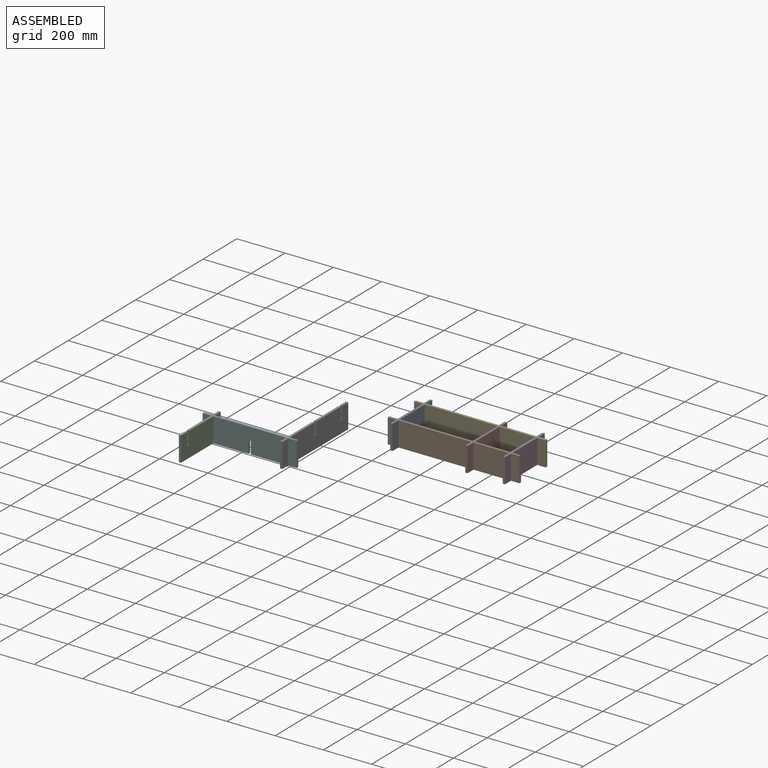
[diagram: assembled view]
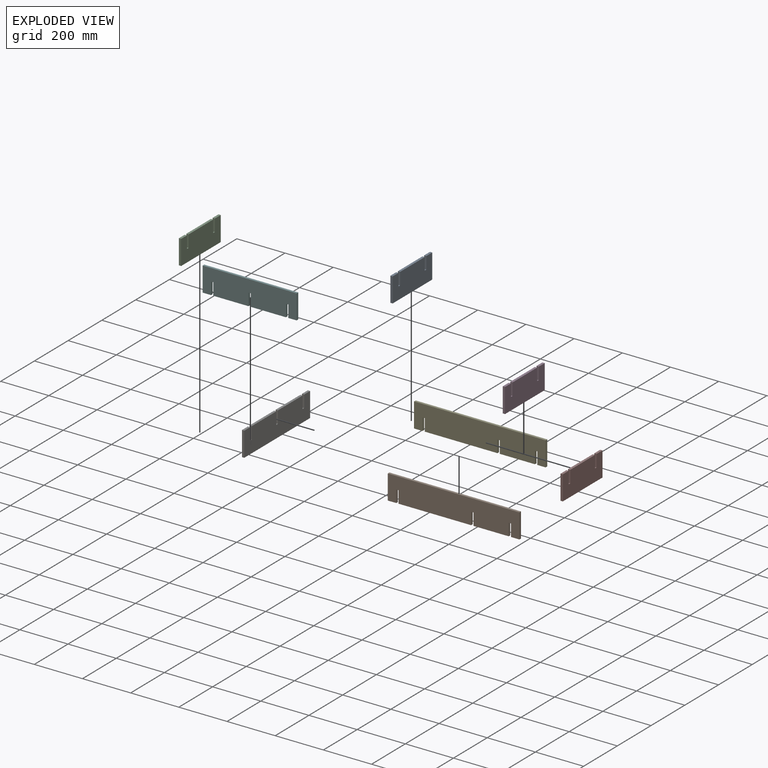
[diagram: exploded view]
GUIDED TOUR — MATED ASSEMBLY (Onshape document ac5bb5d6a02031c84b888dd6, AutoMate assembly ac5bb5d6a02031c84b888dd6_64522fc7bb99e7116ee90f91_e46ffc881eaa41fa5e1d272c_default)

This assembly has 8 components, labeled P0..P7 below (a component is one placed occurrence of a part; the same part can appear more than once), held together by 6 mates. A mate is a constraint between two components; its type names the relative motion it leaves free:
  FASTENED — locks the two components together rigidly (no relative motion).
Axis/direction vectors are unit vectors and 'through' points are millimeter coordinates, both in the assembly's world frame.

MATES
  1. FASTENED "Fastened 4": P7 <-> P4, direction (-1.000, 0.000, 0.000) through (199.04, -105.18, -212.98) mm
  2. FASTENED "Fastened 2": P0 <-> P1, direction (1.000, 0.000, 0.000) through (-102.59, -260.75, -212.98) mm
  3. FASTENED "Fastened 5": P2 <-> P5, direction (1.000, 0.000, 0.000) through (-703.75, -500.25, -266.68) mm
  4. FASTENED "Fastened 3": P4 <-> P0, direction (0.000, -1.000, 0.000) through (-107.35, -109.94, -212.98) mm
  5. FASTENED "Fastened 1": P4 <-> P3, direction (0.000, 1.000, 0.000) through (359.38, -100.41, -212.98) mm
  6. FASTENED "Fastened 6": P6 <-> P5, direction (1.000, 0.000, 0.000) through (-392.60, -500.25, -266.68) mm

ASSEMBLY ORDER
  1. P4 — the base component [order verified]
  2. P3 [order verified]
  3. P1 [order verified]
  4. P6 [order verified]
  5. P5 [order verified]
  6. P2 [order verified]
  7. P7 [order verified]
  8. P0 [order verified]
Order-tag legend:
  [order verified] — this step's position reverses a verified removal order: the component was checked to insert without passing through the ones already placed.

Of the 8 components, 8 carry the full construction recipe — the FeatureScript program that regenerates the part's solid from scratch; the rest are supplied as boundary geometry only.
Each toured component is shown spotlighted twice — in the assembled view, then in the exploded view, where a leader line traces a displaced component back to its assembled socket (saturated green if recipe-attached, orange if geometry-only; every other component desaturated gray) — followed by its recipe or geometry summary and the mates that hold it.
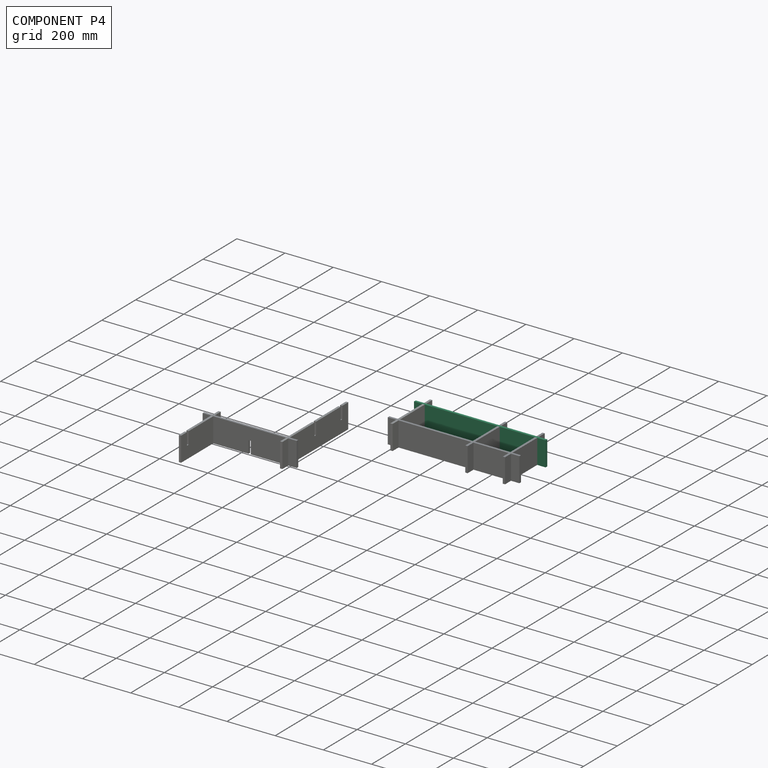
[diagram: component P4 — assembled]
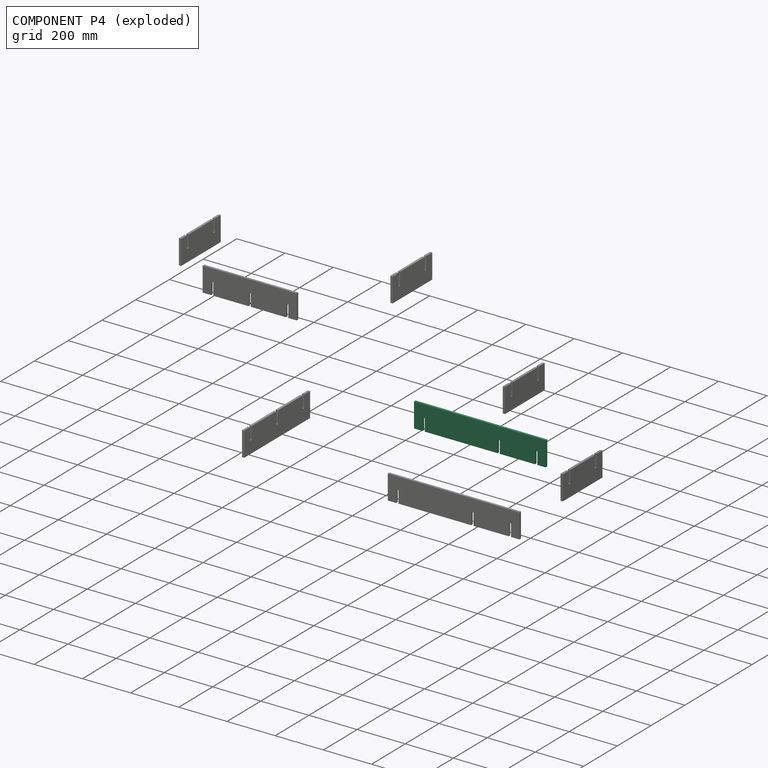
[diagram: component P4 — exploded]
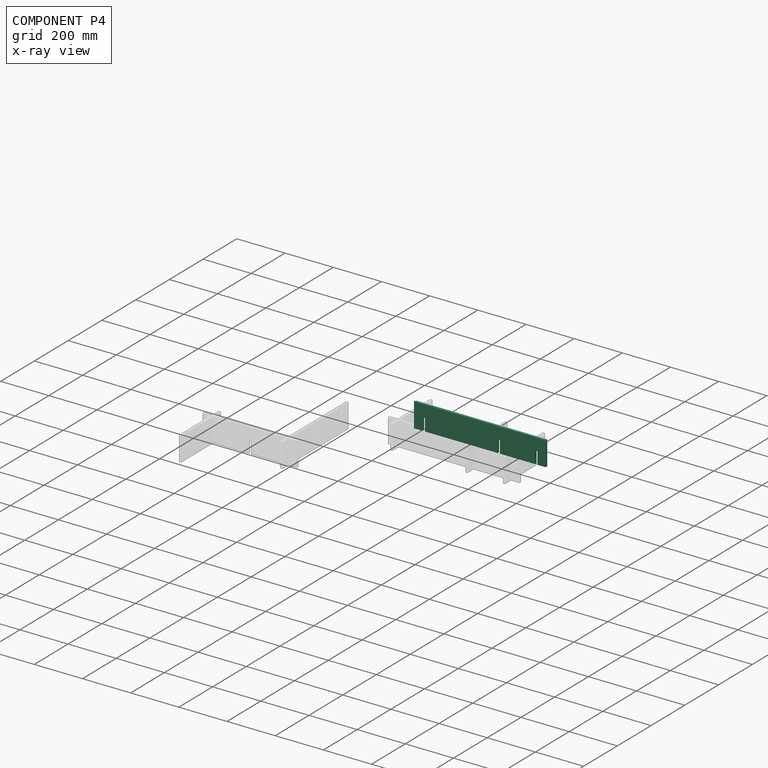
[diagram: component P4 — x-ray view]
COMPONENT P4 — same part as P1 (CADFS 00288358); its construction recipe is shown at P1.
Held by: FASTENED mate "Fastened 4" to P7; FASTENED mate "Fastened 3" to P0; FASTENED mate "Fastened 1" to P3.
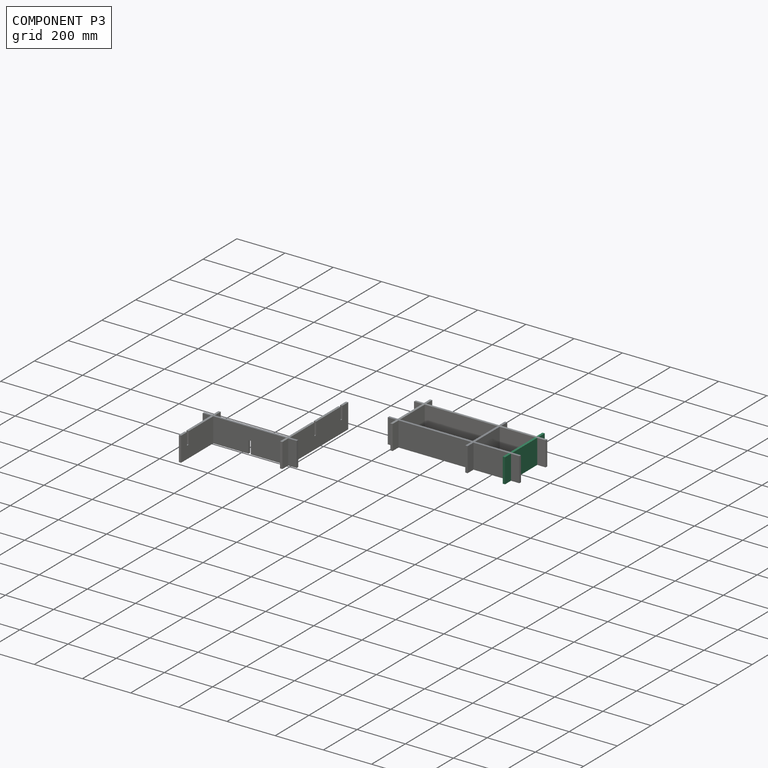
[diagram: component P3 — assembled]
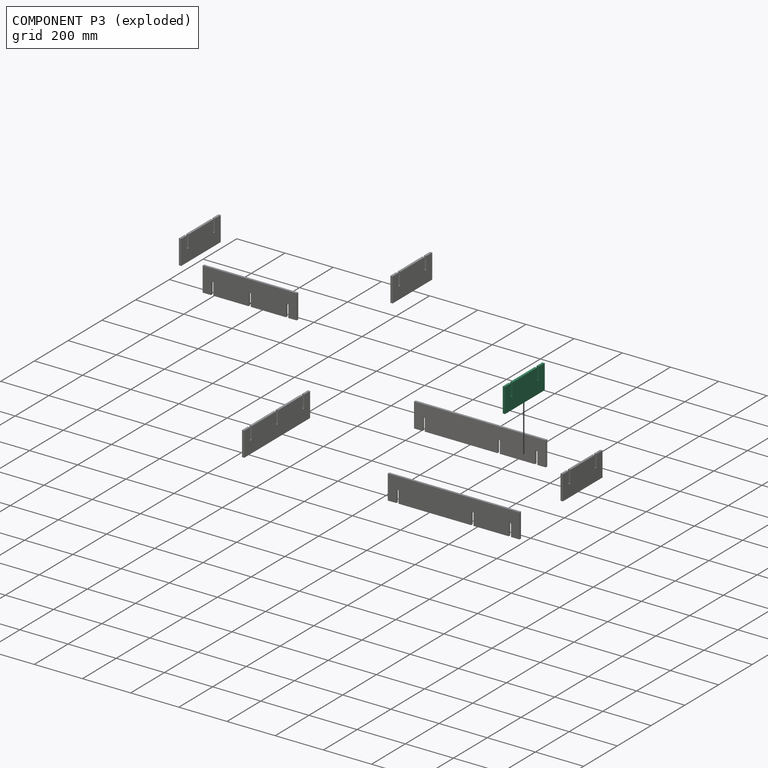
[diagram: component P3 — exploded]
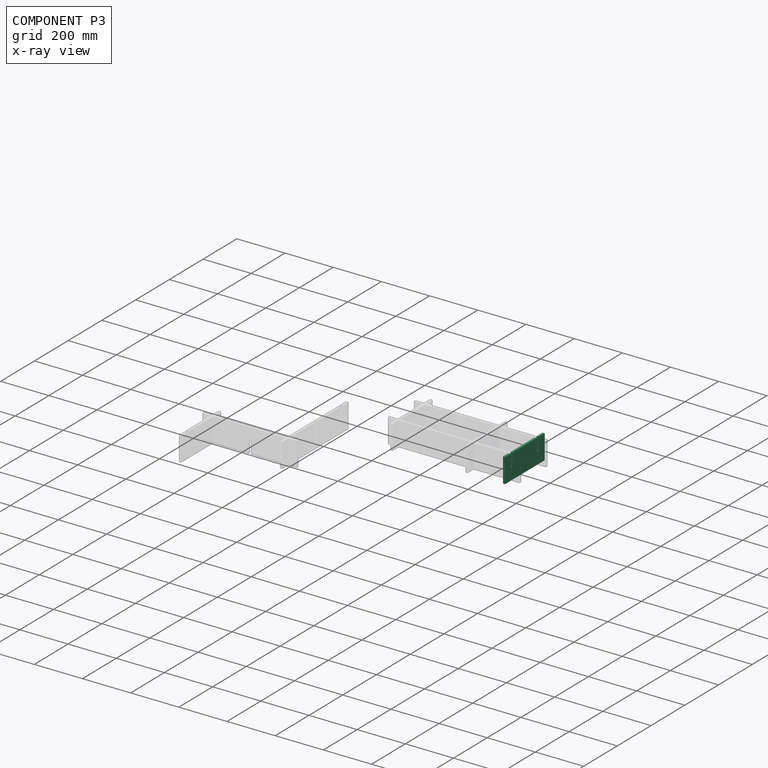
[diagram: component P3 — x-ray view]
COMPONENT P3 — same part as P0 (CADFS 00288355); its construction recipe is shown at P0.
Held by: FASTENED mate "Fastened 1" to P4.
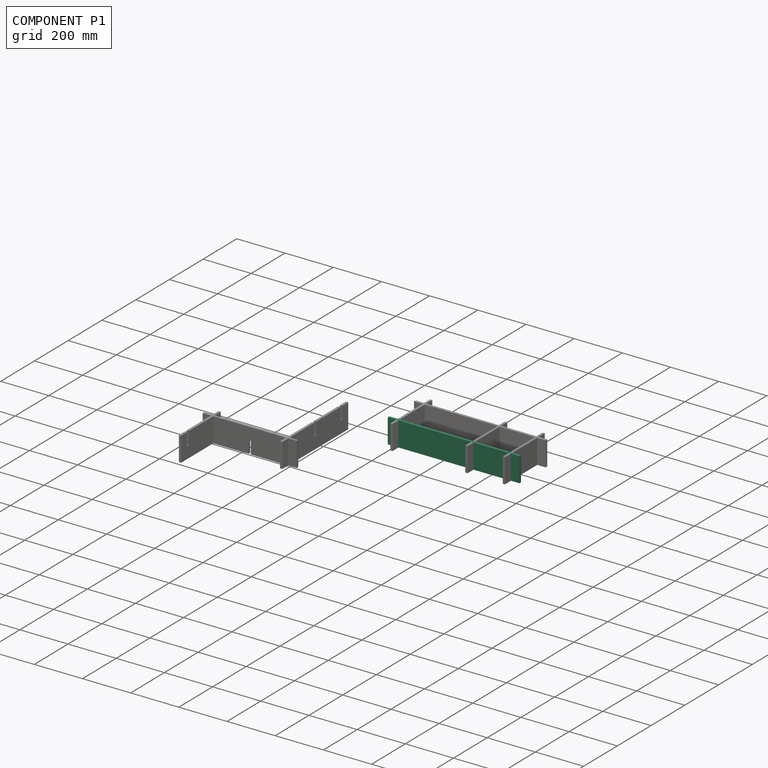
[diagram: component P1 — assembled]
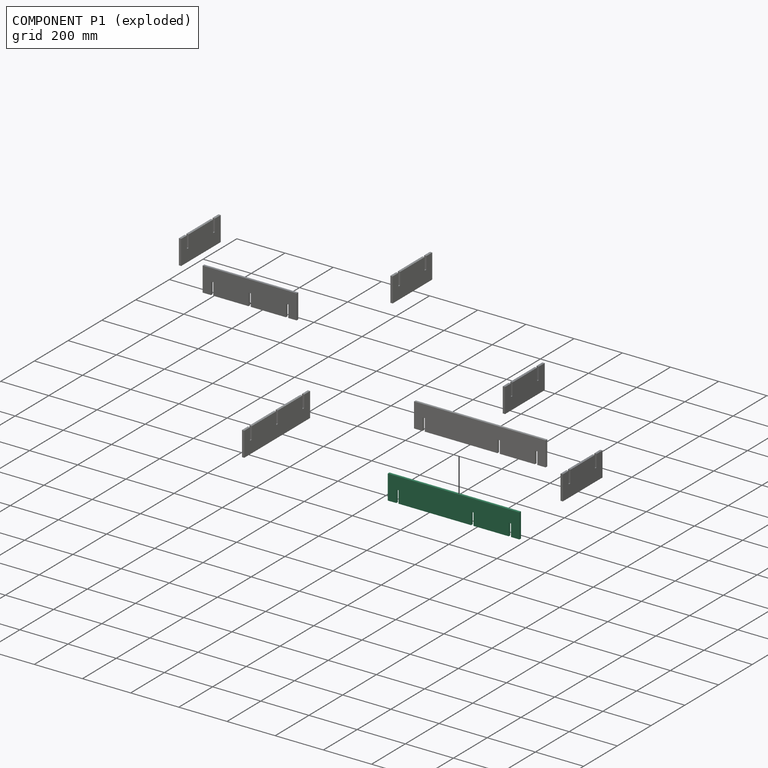
[diagram: component P1 — exploded]
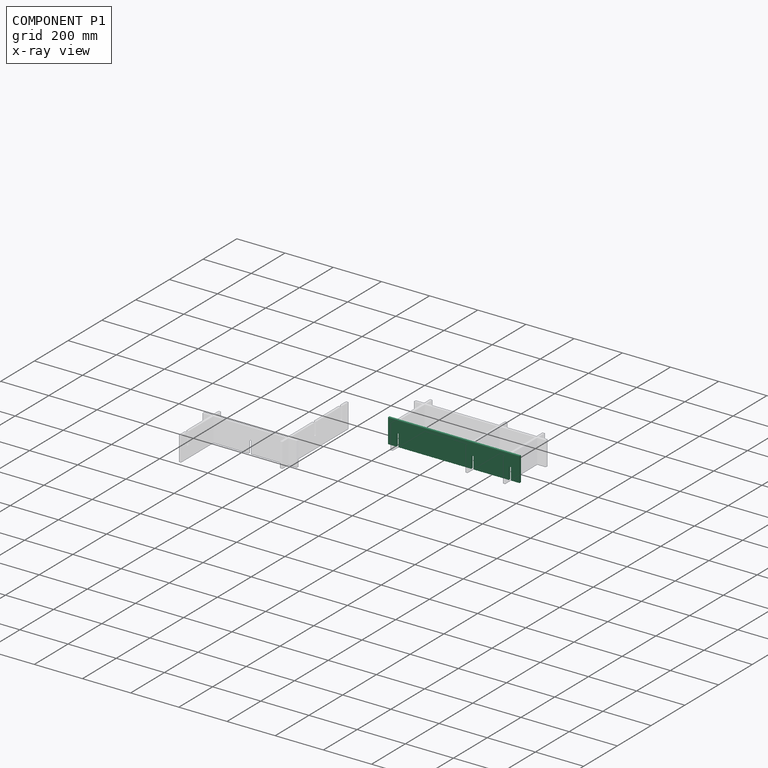
[diagram: component P1 — x-ray view]
COMPONENT P1 — recipe-attached (CADFS 00288358, mesh-verified: the recipe's output STEP matches this component's geometry to below the mesh-comparison resolution (tessellation chordal tolerance ~0.833 mm)).
Held by: FASTENED mate "Fastened 2" to P0.
Construction recipe (FeatureScript — the CAD program that rebuilds this solid; sketch coordinates are in the units given by the * unit suffixes, e.g. mm):

FeatureScript 1511;
import(path : "onshape/std/geometry.fs", version : "1511.0");
import(path : "onshape/std/common.fs", version : "1511.0");
const mm = millimeter;
const VERTEX = EntityType.VERTEX;
const EDGE = EntityType.EDGE;
const FACE = EntityType.FACE;
const BODY = EntityType.BODY;
function v(x, y){return vector(x, y);}
function OD(order){return orderDisambiguation(order);}
function OSD(set){return originalSetDisambiguation(set);}
function TD(topology){return topologyDisambiguation(topology);}
function TDD(query){return trueDependencyDisambiguation(query);}
function sQuery(a, b, c) {return sketchEntityQuery(a, b, c);}

annotation { "Feature Type Name" : "Feature", "Feature Type Description" : "" }
export const myFeature = defineFeature(function(context is Context, id is Id, definition is map)
    precondition{}
    {
        {
            var Q0;
            Q0=qCreatedBy(makeId("Front.planeOp"),FACE);
            var sketch = newSketch(context, id + "F0", { "sketchPlane" : qUnion([Q0])});
            skLineSegment(sketch, "E0.bottom", {"start": v(-273.05, 50.8) * mm, "end": v(273.05, 50.8) * mm});
            skLineSegment(sketch, "E0.top", {"start": v(-273.05, -50.8) * mm, "end": v(-238.12, -50.8) * mm});
            skLineSegment(sketch, "E0.left", {"start": v(-273.05, 50.8) * mm, "end": v(-273.05, -50.8) * mm});
            skLineSegment(sketch, "E0.right", {"start": v(273.05, 50.8) * mm, "end": v(273.05, -50.8) * mm});
            skPoint(sketch, "E0.middle", {"position": v(0, 0) * mm});
            skLineSegment(sketch, "E1.top", {"start": v(-238.12, 0) * mm, "end": v(-228.6, 0) * mm});
            skLineSegment(sketch, "E1.left", {"start": v(-238.12, -50.8) * mm, "end": v(-238.12, 0) * mm});
            skLineSegment(sketch, "E1.right", {"start": v(-228.6, -50.8) * mm, "end": v(-228.6, 0) * mm});
            skLineSegment(sketch, "E2.trimOffspring", {"start": v(-228.6, -50.8) * mm, "end": v(73.02, -50.8) * mm});
            skLineSegment(sketch, "E3.top", {"start": v(228.6, 0) * mm, "end": v(238.12, 0) * mm});
            skLineSegment(sketch, "E3.left", {"start": v(228.6, -50.8) * mm, "end": v(228.6, 0) * mm});
            skLineSegment(sketch, "E3.right", {"start": v(238.12, -50.8) * mm, "end": v(238.12, 0) * mm});
            skLineSegment(sketch, "E4.trimOffspring", {"start": v(238.12, -50.8) * mm, "end": v(273.05, -50.8) * mm});
            skLineSegment(sketch, "E5.top", {"start": v(73.02, 0) * mm, "end": v(82.55, 0) * mm});
            skLineSegment(sketch, "E5.left", {"start": v(73.02, -50.8) * mm, "end": v(73.02, 0) * mm});
            skLineSegment(sketch, "E5.right", {"start": v(82.55, -50.8) * mm, "end": v(82.55, 0) * mm});
            skLineSegment(sketch, "E6.trimOffspring", {"start": v(82.55, -50.8) * mm, "end": v(228.6, -50.8) * mm});
            skSolve(sketch);
        }
        {
            var Q0;
            Q0 = qSketchRegion(id + "F0", true);
            extrude(context, id + "F1", {"entities" : qUnion([Q0]), "depth" : 9.52 * mm});
        }
    });
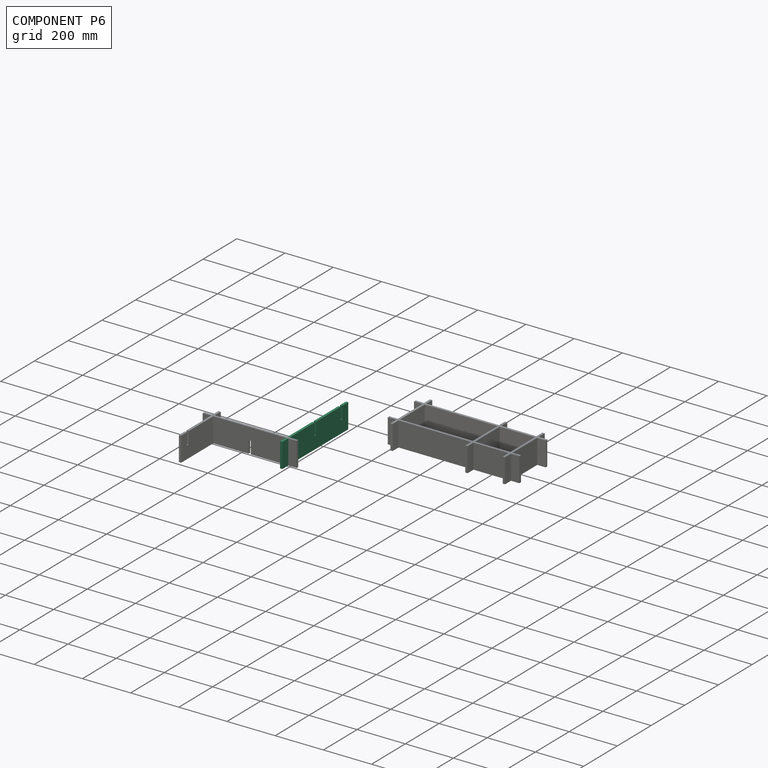
[diagram: component P6 — assembled]
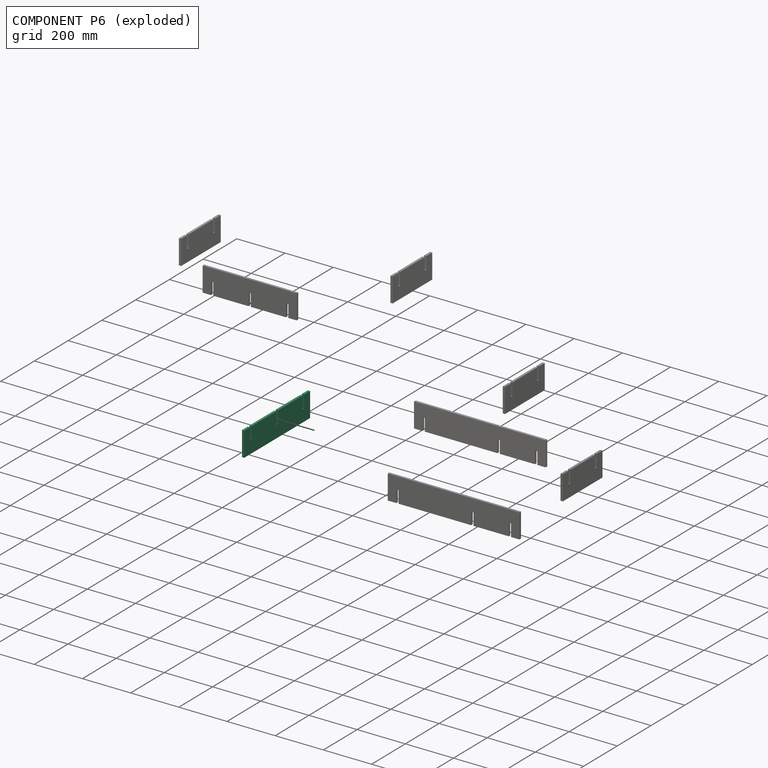
[diagram: component P6 — exploded]
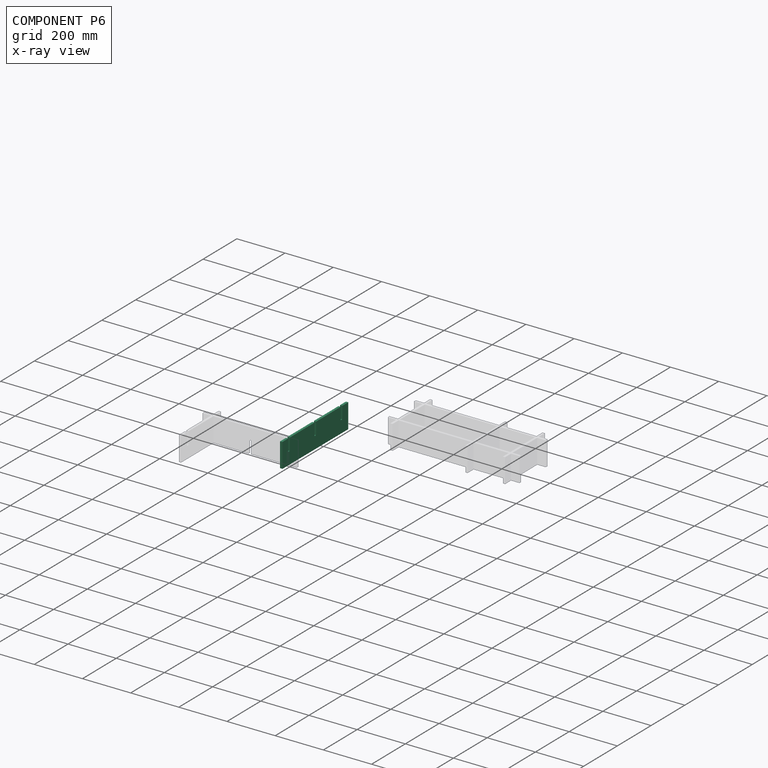
[diagram: component P6 — x-ray view]
COMPONENT P6 — same part as P5 (CADFS 00288356); its construction recipe is shown at P5.
Held by: FASTENED mate "Fastened 6" to P5.
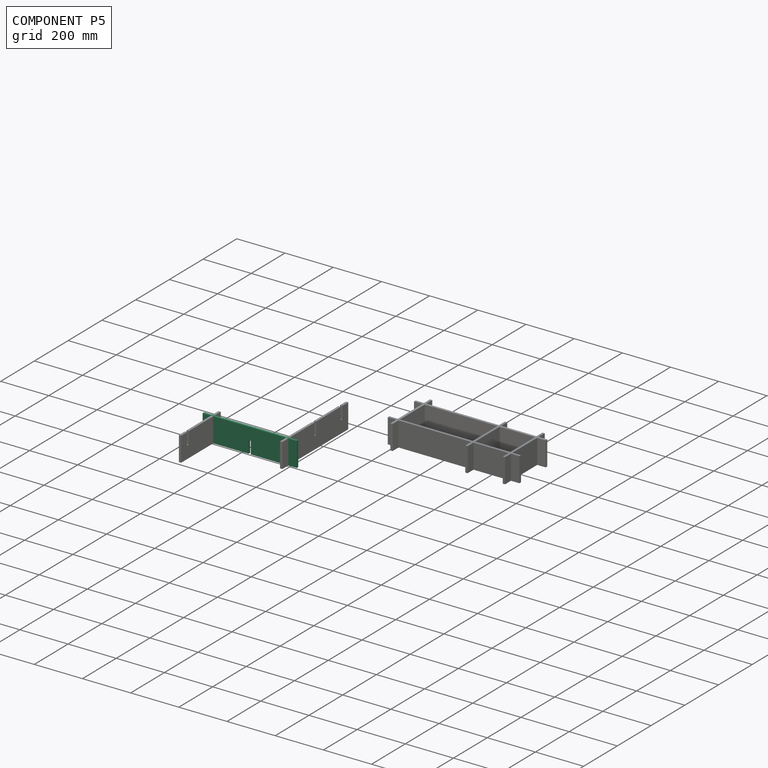
[diagram: component P5 — assembled]
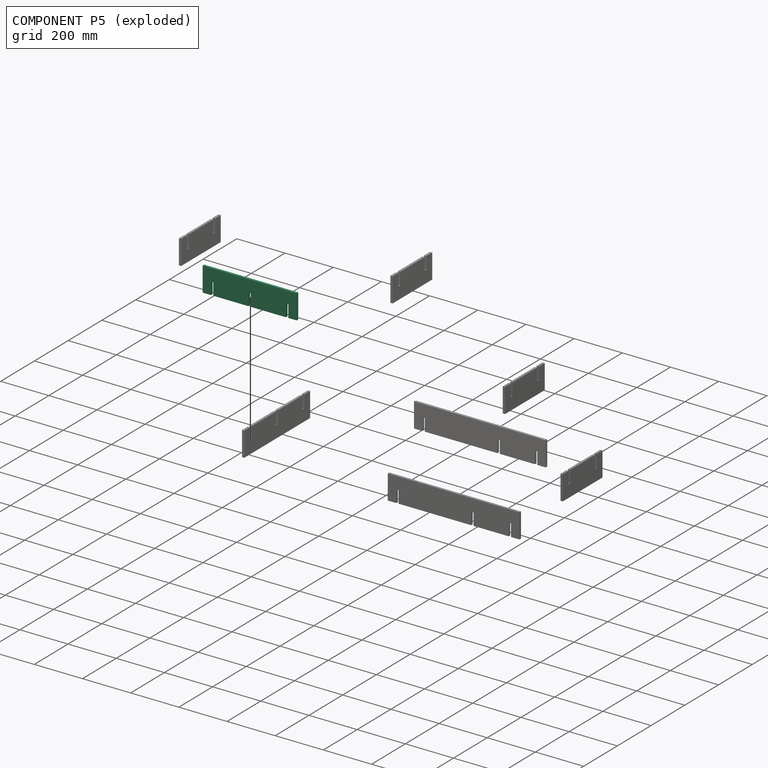
[diagram: component P5 — exploded]
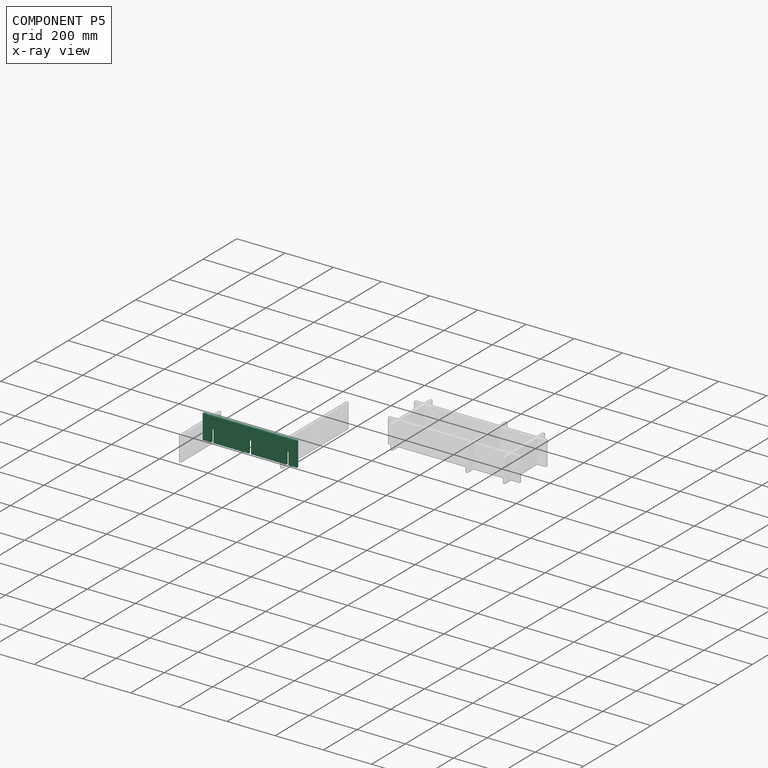
[diagram: component P5 — x-ray view]
COMPONENT P5 — recipe-attached (CADFS 00288356, mesh-verified: the recipe's output STEP matches this component's geometry to below the mesh-comparison resolution (tessellation chordal tolerance ~0.605 mm)).
Held by: FASTENED mate "Fastened 5" to P2; FASTENED mate "Fastened 6" to P6.
Construction recipe (FeatureScript — the CAD program that rebuilds this solid; sketch coordinates are in the units given by the * unit suffixes, e.g. mm):

FeatureScript 1511;
import(path : "onshape/std/geometry.fs", version : "1511.0");
import(path : "onshape/std/common.fs", version : "1511.0");
const mm = millimeter;
const VERTEX = EntityType.VERTEX;
const EDGE = EntityType.EDGE;
const FACE = EntityType.FACE;
const BODY = EntityType.BODY;
function v(x, y){return vector(x, y);}
function OD(order){return orderDisambiguation(order);}
function OSD(set){return originalSetDisambiguation(set);}
function TD(topology){return topologyDisambiguation(topology);}
function TDD(query){return trueDependencyDisambiguation(query);}
function sQuery(a, b, c) {return sketchEntityQuery(a, b, c);}

annotation { "Feature Type Name" : "Feature", "Feature Type Description" : "" }
export const myFeature = defineFeature(function(context is Context, id is Id, definition is map)
    precondition{}
    {
        {
            var Q0;
            Q0=qCreatedBy(makeId("Front.planeOp"),FACE);
            var sketch = newSketch(context, id + "F0", { "sketchPlane" : qUnion([Q0])});
            skLineSegment(sketch, "E0.bottom", {"start": v(-195.26, -50.8) * mm, "end": v(-160.34, -50.8) * mm});
            skLineSegment(sketch, "E0.top", {"start": v(-195.26, 50.8) * mm, "end": v(195.26, 50.8) * mm});
            skLineSegment(sketch, "E0.left", {"start": v(-195.26, -50.8) * mm, "end": v(-195.26, 50.8) * mm});
            skLineSegment(sketch, "E0.right", {"start": v(195.26, -50.8) * mm, "end": v(195.26, 50.8) * mm});
            skPoint(sketch, "E0.middle", {"position": v(0, 0) * mm});
            skLineSegment(sketch, "E1.top", {"start": v(-160.34, 0) * mm, "end": v(-150.81, 0) * mm});
            skLineSegment(sketch, "E1.left", {"start": v(-160.34, -50.8) * mm, "end": v(-160.34, 0) * mm});
            skLineSegment(sketch, "E1.right", {"start": v(-150.81, -50.8) * mm, "end": v(-150.81, 0) * mm});
            skLineSegment(sketch, "E2.top", {"start": v(160.34, 0) * mm, "end": v(150.81, 0) * mm});
            skLineSegment(sketch, "E2.left", {"start": v(160.34, -50.8) * mm, "end": v(160.34, 0) * mm});
            skLineSegment(sketch, "E2.right", {"start": v(150.81, -50.8) * mm, "end": v(150.81, 0) * mm});
            skPoint(sketch, "E3.oppositeSnap0", {"position": v(160.34, -25.4) * mm});
            skLineSegment(sketch, "E3.left", {"start": v(160.34, -25.4) * mm, "end": v(160.34, -25.4) * mm});
            skLineSegment(sketch, "E3.right", {"start": v(195.26, -25.4) * mm, "end": v(195.26, -25.4) * mm});
            skLineSegment(sketch, "E4.trimOffspring", {"start": v(-150.81, -50.8) * mm, "end": v(-4.76, -50.8) * mm});
            skLineSegment(sketch, "E5.trimOffspring", {"start": v(160.34, -50.8) * mm, "end": v(195.26, -50.8) * mm});
            skLineSegment(sketch, "E6.top", {"start": v(-6.92, 0) * mm, "end": v(2.6, 0) * mm});
            skLineSegment(sketch, "E7.top", {"start": v(-4.76, 0) * mm, "end": v(4.76, 0) * mm});
            skLineSegment(sketch, "E7.left", {"start": v(-4.76, -50.8) * mm, "end": v(-4.76, 0) * mm});
            skLineSegment(sketch, "E7.right", {"start": v(4.76, -50.8) * mm, "end": v(4.76, 0) * mm});
            skLineSegment(sketch, "E8.trimOffspring", {"start": v(4.76, -50.8) * mm, "end": v(150.81, -50.8) * mm});
            skSolve(sketch);
        }
        {
            var Q0;
            Q0 = qSketchRegion(id + "F0", true);
            extrude(context, id + "F1", {"entities" : qUnion([Q0]), "depth" : 9.52 * mm});
        }
    });
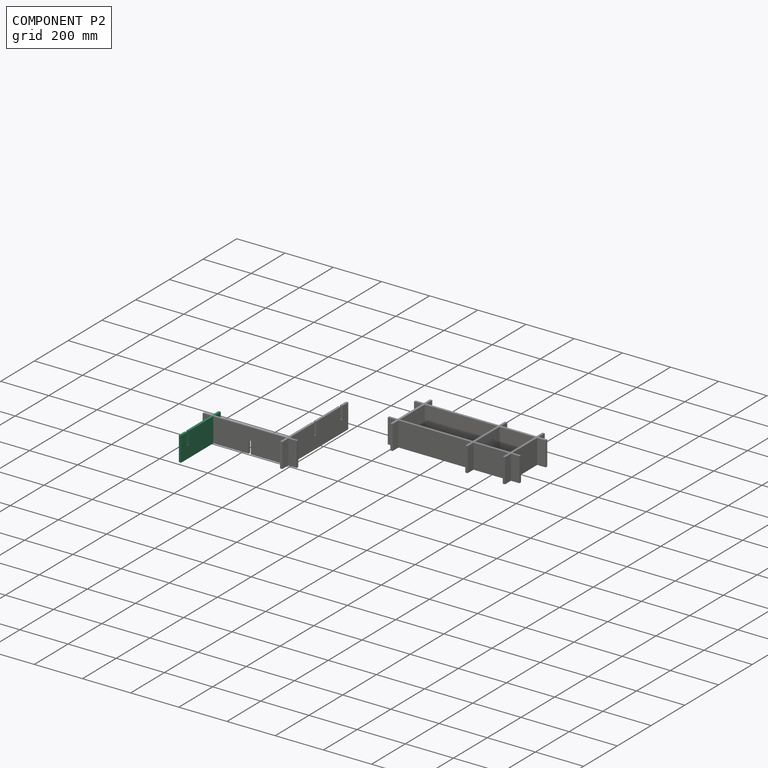
[diagram: component P2 — assembled]
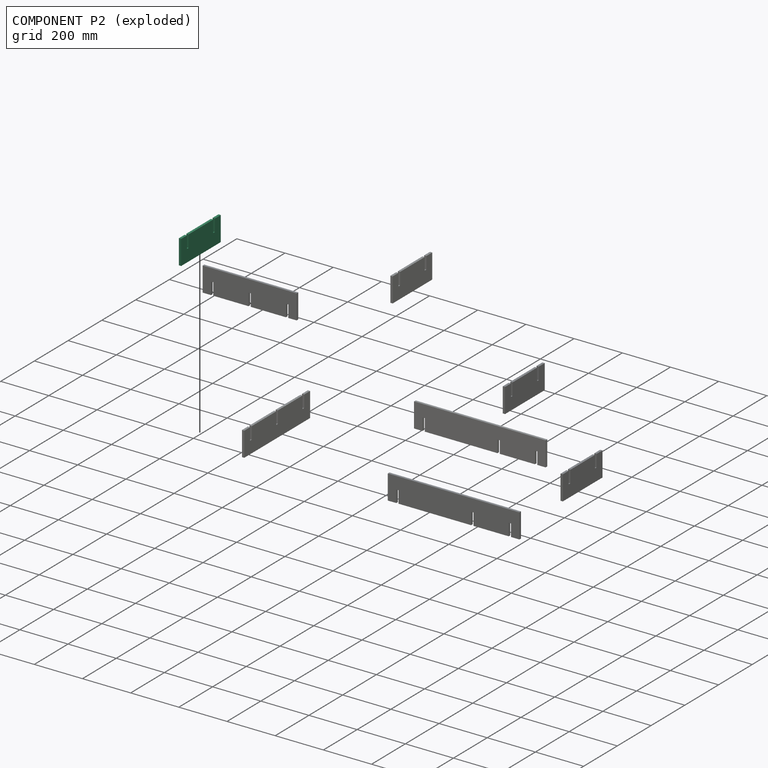
[diagram: component P2 — exploded]
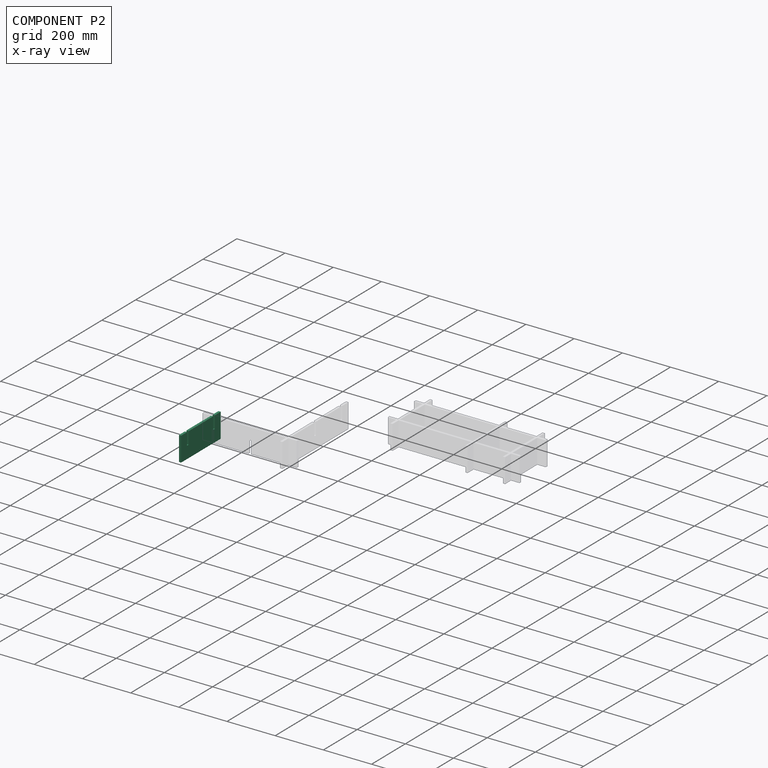
[diagram: component P2 — x-ray view]
COMPONENT P2 — same part as P0 (CADFS 00288355); its construction recipe is shown at P0.
Held by: FASTENED mate "Fastened 5" to P5.
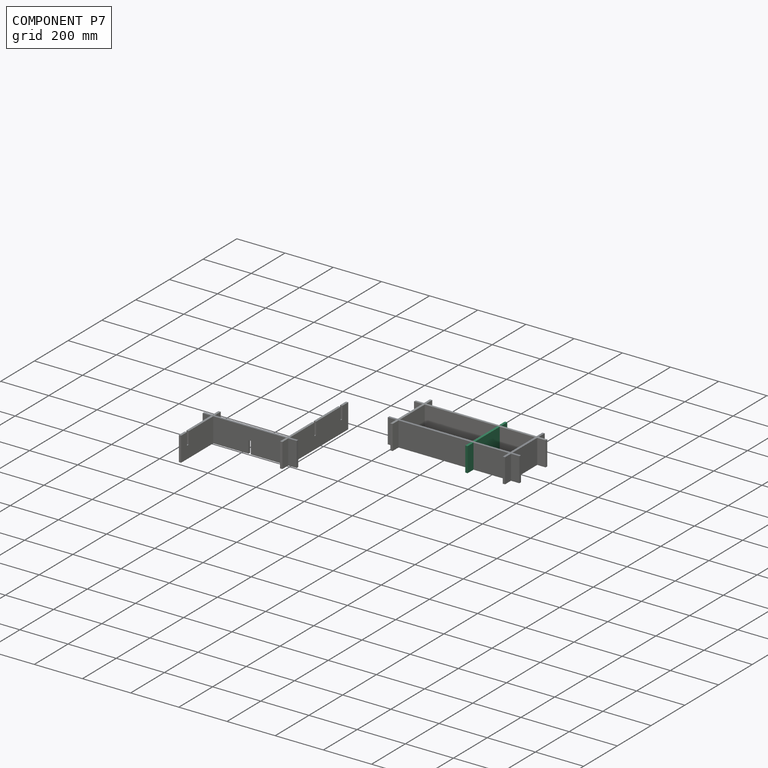
[diagram: component P7 — assembled]
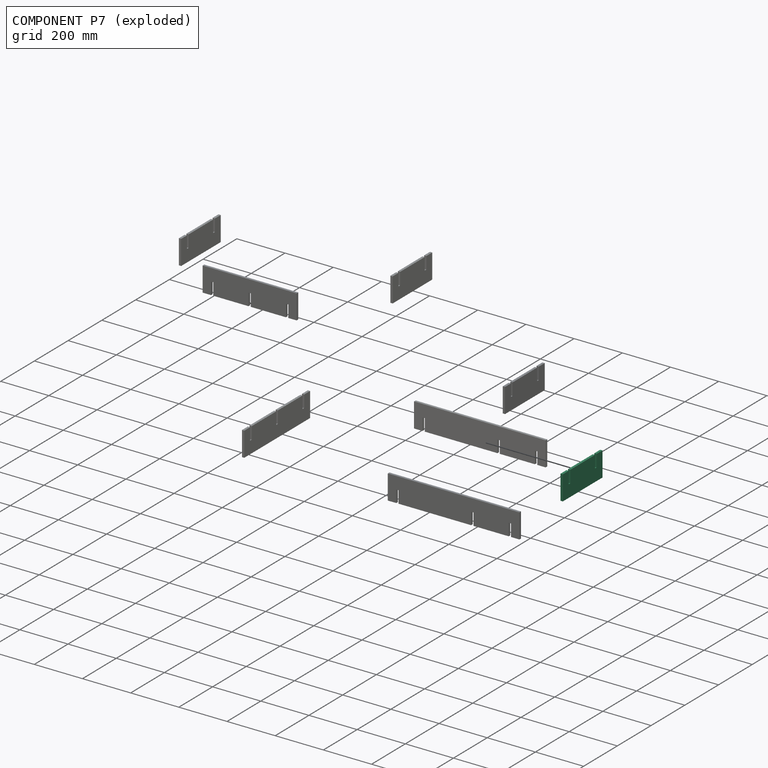
[diagram: component P7 — exploded]
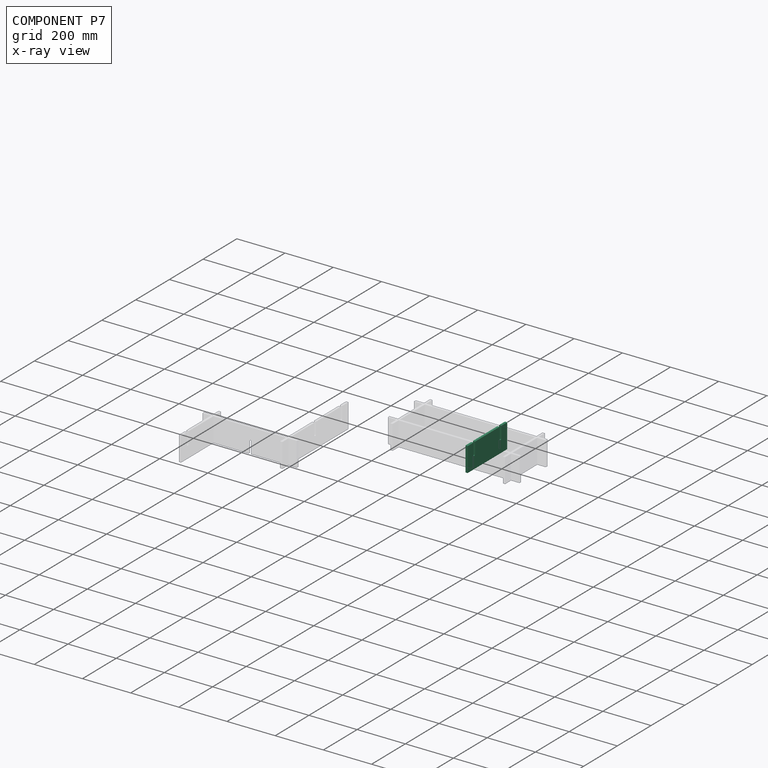
[diagram: component P7 — x-ray view]
COMPONENT P7 — same part as P0 (CADFS 00288355); its construction recipe is shown at P0.
Held by: FASTENED mate "Fastened 4" to P4.
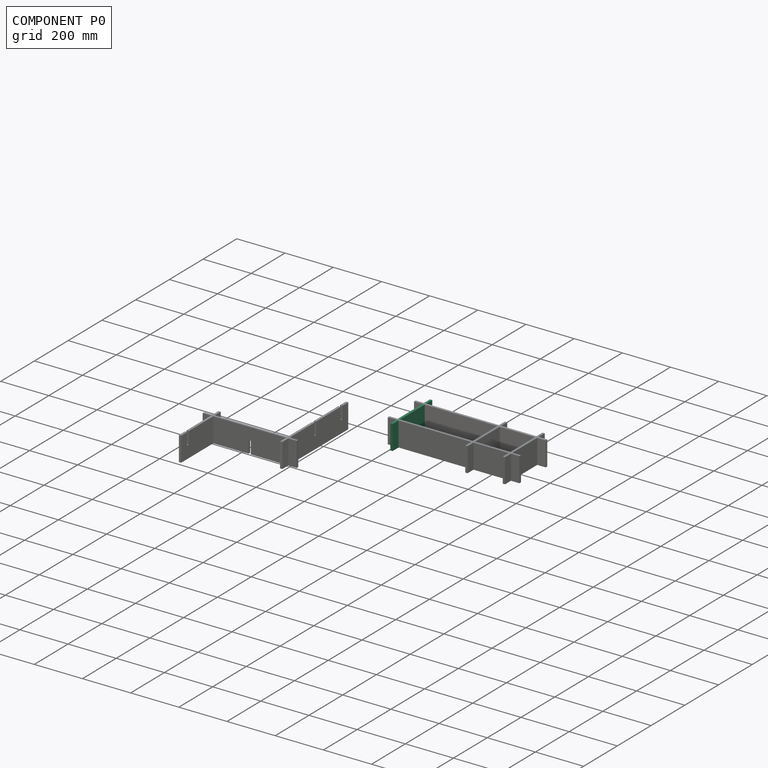
[diagram: component P0 — assembled]
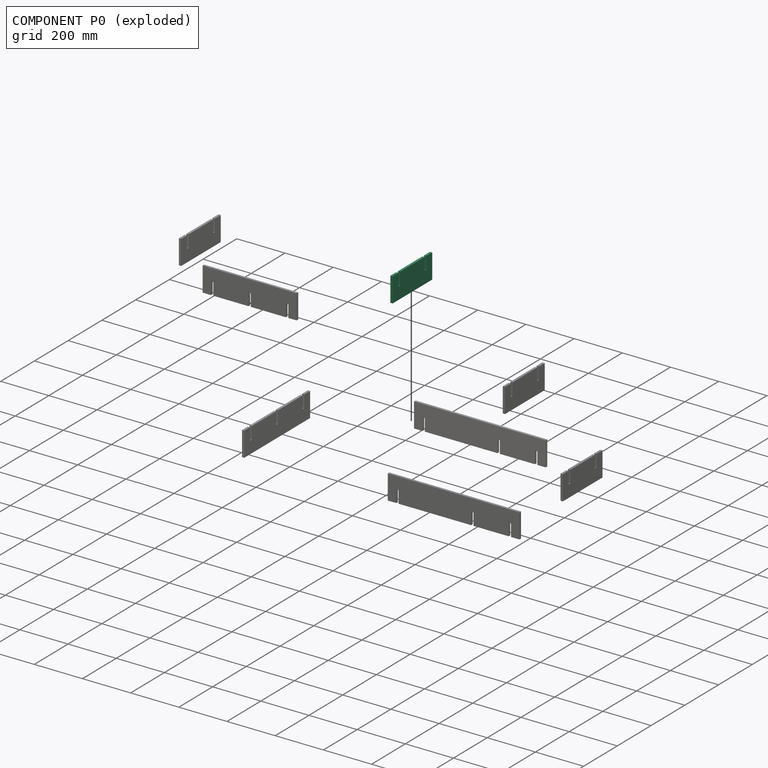
[diagram: component P0 — exploded]
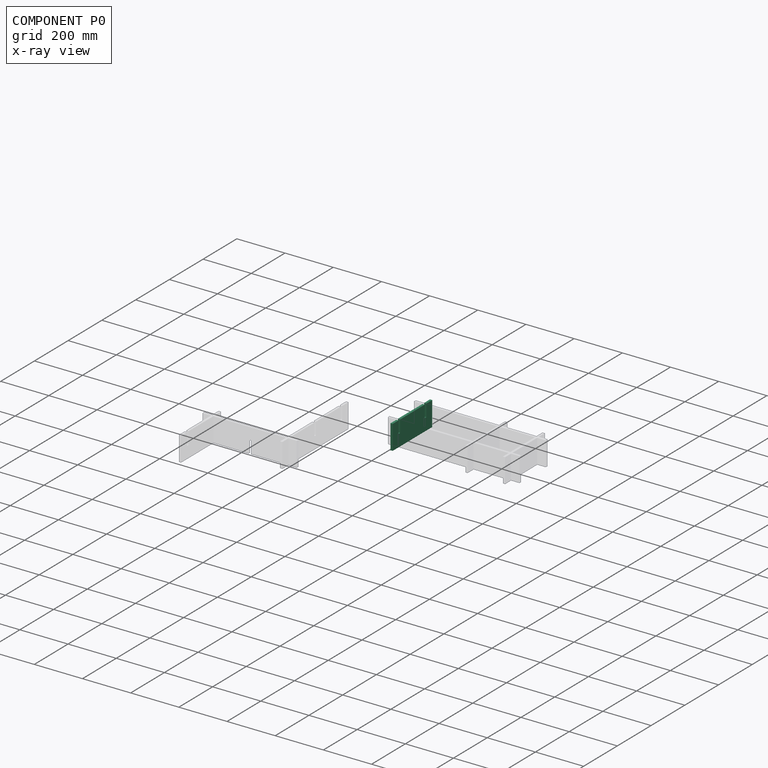
[diagram: component P0 — x-ray view]
COMPONENT P0 — recipe-attached (CADFS 00288355, mesh-verified: the recipe's output STEP matches this component's geometry to below the mesh-comparison resolution (tessellation chordal tolerance ~0.384 mm)).
Held by: FASTENED mate "Fastened 2" to P1; FASTENED mate "Fastened 3" to P4.
Construction recipe (FeatureScript — the CAD program that rebuilds this solid; sketch coordinates are in the units given by the * unit suffixes, e.g. mm):

FeatureScript 1511;
import(path : "onshape/std/geometry.fs", version : "1511.0");
import(path : "onshape/std/common.fs", version : "1511.0");
const mm = millimeter;
const VERTEX = EntityType.VERTEX;
const EDGE = EntityType.EDGE;
const FACE = EntityType.FACE;
const BODY = EntityType.BODY;
function v(x, y){return vector(x, y);}
function OD(order){return orderDisambiguation(order);}
function OSD(set){return originalSetDisambiguation(set);}
function TD(topology){return topologyDisambiguation(topology);}
function TDD(query){return trueDependencyDisambiguation(query);}
function sQuery(a, b, c) {return sketchEntityQuery(a, b, c);}

annotation { "Feature Type Name" : "Feature", "Feature Type Description" : "" }
export const myFeature = defineFeature(function(context is Context, id is Id, definition is map)
    precondition{}
    {
        {
            var Q0;
            Q0=qCreatedBy(makeId("Front.planeOp"),FACE);
            var sketch = newSketch(context, id + "F0", { "sketchPlane" : qUnion([Q0])});
            skLineSegment(sketch, "E0.bottom", {"start": v(-117.48, -50.8) * mm, "end": v(-82.55, -50.8) * mm});
            skLineSegment(sketch, "E0.top", {"start": v(-117.48, 50.8) * mm, "end": v(117.48, 50.8) * mm});
            skLineSegment(sketch, "E0.left", {"start": v(-117.48, -50.8) * mm, "end": v(-117.48, 50.8) * mm});
            skLineSegment(sketch, "E0.right", {"start": v(117.48, -50.8) * mm, "end": v(117.48, 50.8) * mm});
            skPoint(sketch, "E0.middle", {"position": v(0, 0) * mm});
            skLineSegment(sketch, "E1.top", {"start": v(-82.55, 0) * mm, "end": v(-73.03, 0) * mm});
            skLineSegment(sketch, "E1.left", {"start": v(-82.55, -50.8) * mm, "end": v(-82.55, 0) * mm});
            skLineSegment(sketch, "E1.right", {"start": v(-73.03, -50.8) * mm, "end": v(-73.03, 0) * mm});
            skLineSegment(sketch, "E2.trimOffspring", {"start": v(-73.03, -50.8) * mm, "end": v(73.02, -50.8) * mm});
            skLineSegment(sketch, "E3.top", {"start": v(82.55, 0) * mm, "end": v(73.03, 0) * mm});
            skLineSegment(sketch, "E3.left", {"start": v(82.55, -50.8) * mm, "end": v(82.55, 0) * mm});
            skLineSegment(sketch, "E3.right", {"start": v(73.03, -50.8) * mm, "end": v(73.03, 0) * mm});
            skLineSegment(sketch, "E4.trimOffspring", {"start": v(82.55, -50.8) * mm, "end": v(117.48, -50.8) * mm});
            skSolve(sketch);
        }
        {
            var Q0;
            Q0 = qSketchRegion(id + "F0", true);
            extrude(context, id + "F1", {"entities" : qUnion([Q0]), "depth" : 9.52 * mm});
        }
    });
PROVENANCE & LICENSES
Assembly (occurrences, transforms, mates, per-part STEP geometry): AutoMate dataset, Zenodo record 7776208, CC0.
Construction recipes: CADFS (HuggingFace VladPyatov/CADFS, CC-BY-4.0, layered over the ABC dataset), FeatureScript reconstruction programs keyed by ABC model id.
Join: ABC meta listings map ABC model id -> Onshape documentId; within a shared document, parts are matched by geometric signature (bounding-box dims + volume at 0.1% relative tolerance, exact B-rep face/solid counts).
Verification: 8 of this assembly's 8 components carry a recipe attachment, and every attachment is mesh-verified: the CADFS STEP and the AutoMate member STEP were compared as meshes in their shared local frame (symmetric sampled-point-to-mesh distance); worst across the 8 attachments: below the mesh-comparison resolution (tessellation chordal tolerance ~0.833 mm) on a 556 mm part.
Renders: orthographic iso camera (az 35 / el 25); the floor grid conveys scale (grid pitch printed in each image; no ruler). In the exploded view each component is displaced by its stored offset vector: the offsets alone carry the explosion direction (mate normal/axis signs are not orientation cues and do not encode it), and separation distances are assigned per mate-chain, not proportionally to assembly-order depth.
